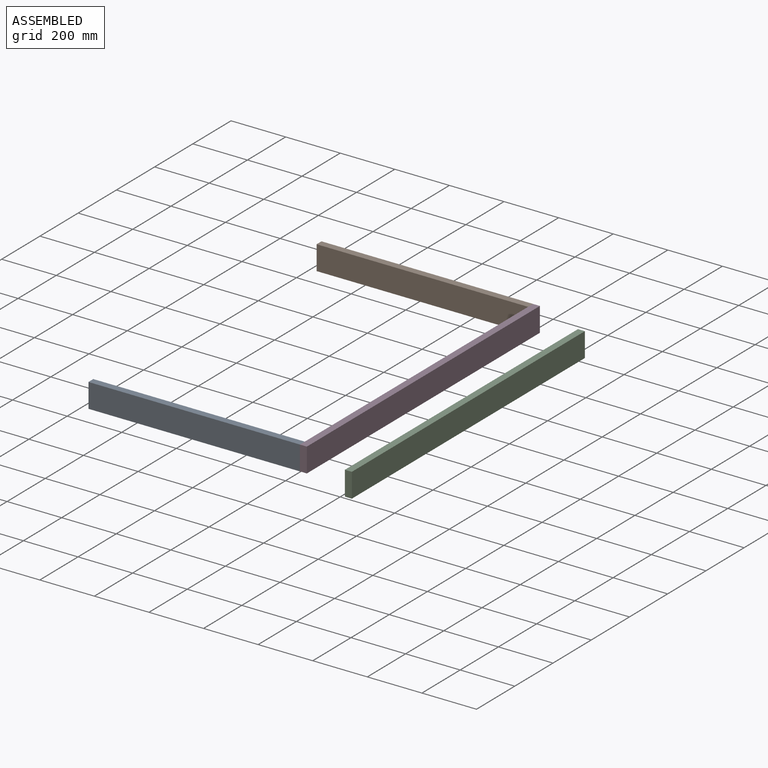
[diagram: assembled view]
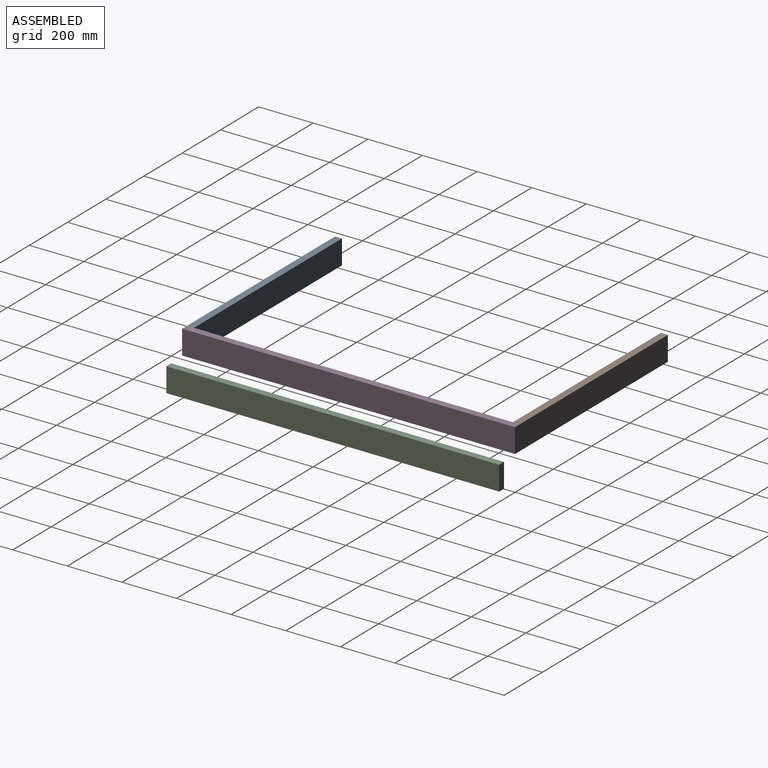
[diagram: assembled view, second angle]
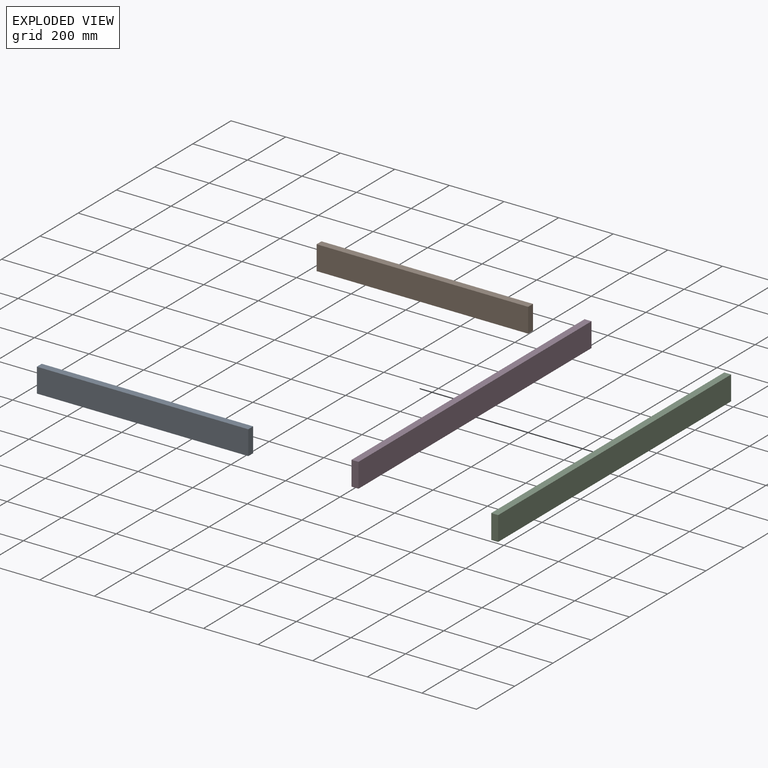
[diagram: exploded view]
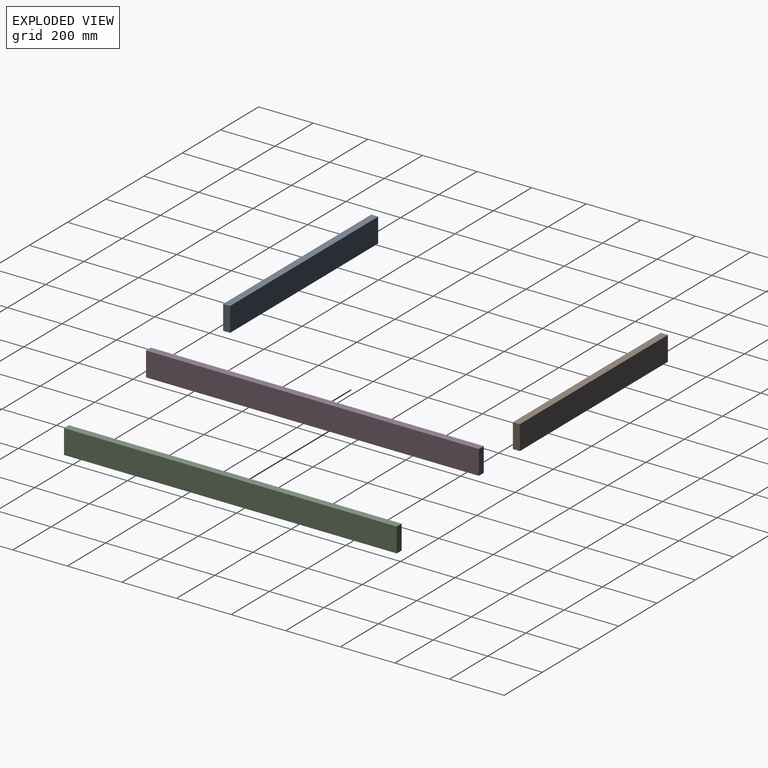
[diagram: exploded view, second angle]
ASSEMBLY  parts=4 mates=2
PART A: 6 faces, bbox 774.7x25.4x88.9 mm
  f0: plane 88.9x25.4mm, normal (1,0,0), area 2258.1mm2, adj f1,f3,f4,f5
  f1: plane 774.7x25.4mm, normal (0,0,1), area 19677.4mm2, adj f0,f2,f4,f5
  f2: plane 88.9x25.4mm, normal (-1,0,0), area 2258.1mm2, adj f1,f3,f4,f5
  f3: plane 774.7x25.4mm, normal (0,0,-1), area 19677.4mm2, adj f0,f2,f4,f5
  f4: plane 774.7x88.9mm, normal (0,-1,0), area 68870.8mm2, adj f0,f1,f2,f3
  f5: plane 774.7x88.9mm, normal (0,1,0), area 68870.8mm2, adj f0,f1,f2,f3
PART B: same geometry as A
PART C: 6 faces, bbox 25.4x1219.2x88.9 mm
  f0: plane 1219.2x25.4mm, normal (0,0,-1), area 30967.7mm2, adj f1,f3,f4,f5
  f1: plane 88.9x25.4mm, normal (0,1,0), area 2258.1mm2, adj f0,f2,f4,f5
  f2: plane 1219.2x25.4mm, normal (0,0,1), area 30967.7mm2, adj f1,f3,f4,f5
  f3: plane 88.9x25.4mm, normal (0,-1,0), area 2258.1mm2, adj f0,f2,f4,f5
  f4: plane 1219.2x88.9mm, normal (1,0,0), area 108386.9mm2, adj f0,f1,f2,f3
  f5: plane 1219.2x88.9mm, normal (-1,0,0), area 108386.9mm2, adj f0,f1,f2,f3
PART D: same geometry as C
PLACE A t=(-485.23,-644.93,-17.33)mm
PLACE B t=(-485.23,548.87,-17.33)mm
PLACE C t=(39.89,-200.21,39.86)mm
PLACE D t=(-97.88,-238.81,101.28)mm
MATE fastened A.f0 <-> D.f5  axis (1,0,0) through (-97.88,-670.33,-17.33)mm
MATE fastened B.f0 <-> D.f5  axis (1,0,0) through (-97.88,548.87,-17.33)mm
